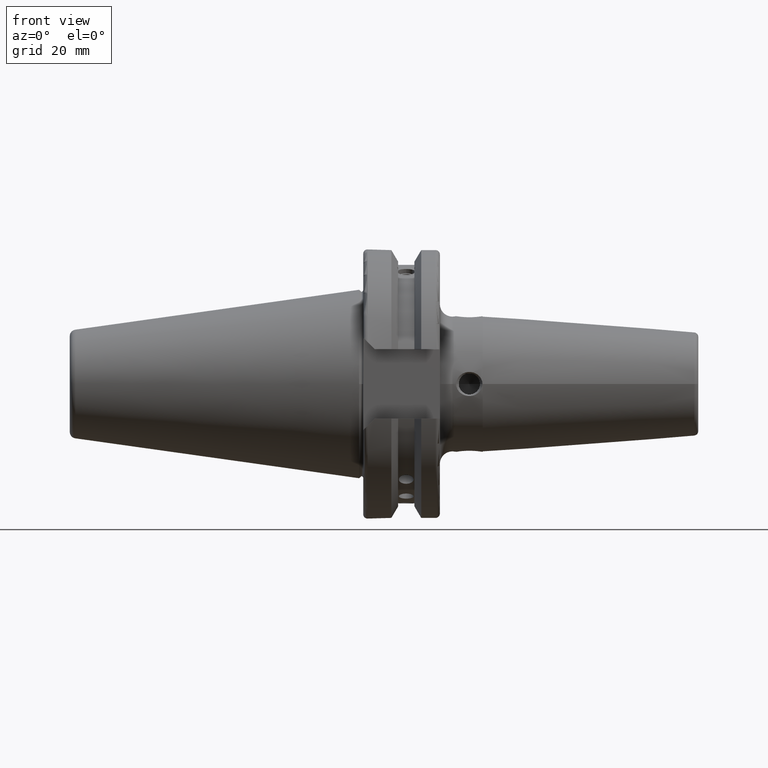
[diagram: clean part render]
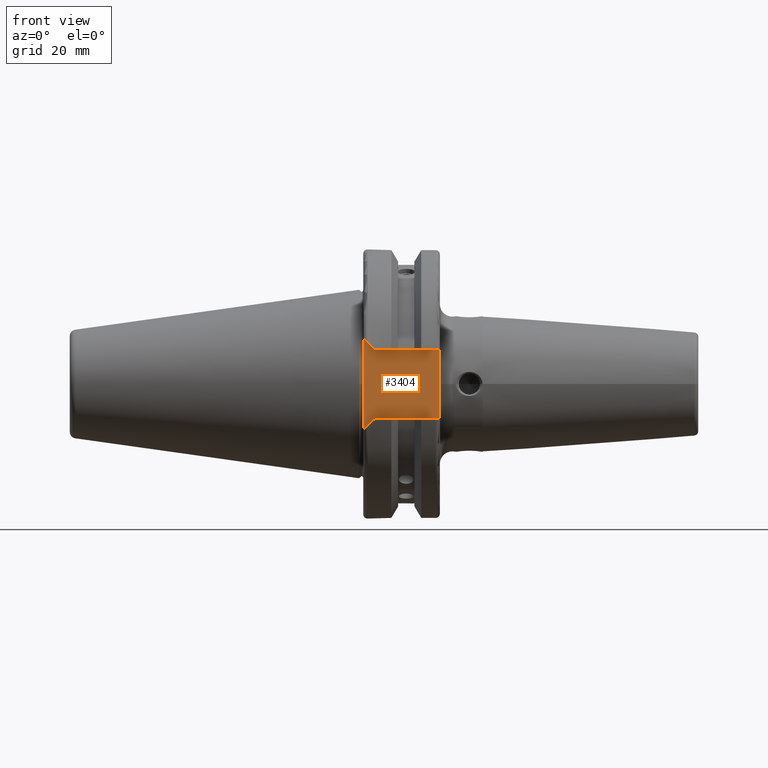
[diagram: same view with one face highlighted and labeled with its STEP entity id]
A machine part, front view. The second image highlights one B-rep face of the part: STEP entity #3404.
In plain terms, the highlighted planar face has unit normal (0, 1, 0).
Its self-contained STEP definition (entity closure, byte-faithful):
#498=DIRECTION('',(0.E0,0.E0,-1.E0));
#499=VECTOR('',#498,6.44E-1);
#500=CARTESIAN_POINT('',(7.5E-1,-8.976377952756E-1,3.22E-1));
#501=LINE('',#500,#499);
#746=DIRECTION('',(0.E0,0.E0,1.E0));
#747=VECTOR('',#746,8.56E-1);
#748=CARTESIAN_POINT('',(3.9E-2,-8.976377952756E-1,-4.28E-1));
#749=LINE('',#748,#747);
#750=DIRECTION('',(1.E0,0.E0,0.E0));
#751=VECTOR('',#750,6.05E-1);
#752=CARTESIAN_POINT('',(1.45E-1,-8.976377952756E-1,3.22E-1));
#753=LINE('',#752,#751);
#754=DIRECTION('',(-1.E0,0.E0,0.E0));
#755=VECTOR('',#754,6.05E-1);
#756=CARTESIAN_POINT('',(7.5E-1,-8.976377952756E-1,-3.22E-1));
#757=LINE('',#756,#755);
#768=DIRECTION('',(-7.071067811865E-1,0.E0,7.071067811865E-1));
#769=VECTOR('',#768,1.499066376115E-1);
#770=CARTESIAN_POINT('',(1.45E-1,-8.976377952756E-1,3.22E-1));
#771=LINE('',#770,#769);
#1814=DIRECTION('',(7.071067811865E-1,0.E0,7.071067811865E-1));
#1815=VECTOR('',#1814,1.499066376115E-1);
#1816=CARTESIAN_POINT('',(3.9E-2,-8.976377952756E-1,-4.28E-1));
#1817=LINE('',#1816,#1815);
#2140=CARTESIAN_POINT('',(7.5E-1,-8.976377952756E-1,3.22E-1));
#2141=CARTESIAN_POINT('',(7.5E-1,-8.976377952756E-1,-3.22E-1));
#2142=VERTEX_POINT('',#2140);
#2143=VERTEX_POINT('',#2141);
#2221=CARTESIAN_POINT('',(1.45E-1,-8.976377952756E-1,-3.22E-1));
#2223=VERTEX_POINT('',#2221);
#2224=CARTESIAN_POINT('',(1.45E-1,-8.976377952756E-1,3.22E-1));
#2226=VERTEX_POINT('',#2224);
#2232=CARTESIAN_POINT('',(3.9E-2,-8.976377952756E-1,-4.28E-1));
#2233=VERTEX_POINT('',#2232);
#2234=CARTESIAN_POINT('',(3.9E-2,-8.976377952756E-1,4.28E-1));
#2235=VERTEX_POINT('',#2234);
#3388=CARTESIAN_POINT('',(0.E0,-8.976377952756E-1,0.E0));
#3389=DIRECTION('',(0.E0,1.E0,0.E0));
#3390=DIRECTION('',(1.E0,0.E0,0.E0));
#3391=AXIS2_PLACEMENT_3D('',#3388,#3389,#3390);
#3392=PLANE('',#3391);
#3393=ORIENTED_EDGE('',*,*,#3277,.T.);
#3395=ORIENTED_EDGE('',*,*,#3394,.F.);
#3396=ORIENTED_EDGE('',*,*,#3369,.T.);
#3397=ORIENTED_EDGE('',*,*,#3125,.T.);
#3399=ORIENTED_EDGE('',*,*,#3398,.T.);
#3401=ORIENTED_EDGE('',*,*,#3400,.F.);
#3402=EDGE_LOOP('',(#3393,#3395,#3396,#3397,#3399,#3401));
#3403=FACE_OUTER_BOUND('',#3402,.F.);
#3404=ADVANCED_FACE('',(#3403),#3392,.F.);
#3125=EDGE_CURVE('',#2142,#2143,#501,.T.);
#3277=EDGE_CURVE('',#2233,#2235,#749,.T.);
#3369=EDGE_CURVE('',#2226,#2142,#753,.T.);
#3394=EDGE_CURVE('',#2226,#2235,#771,.T.);
#3398=EDGE_CURVE('',#2143,#2223,#757,.T.);
#3400=EDGE_CURVE('',#2233,#2223,#1817,.T.);